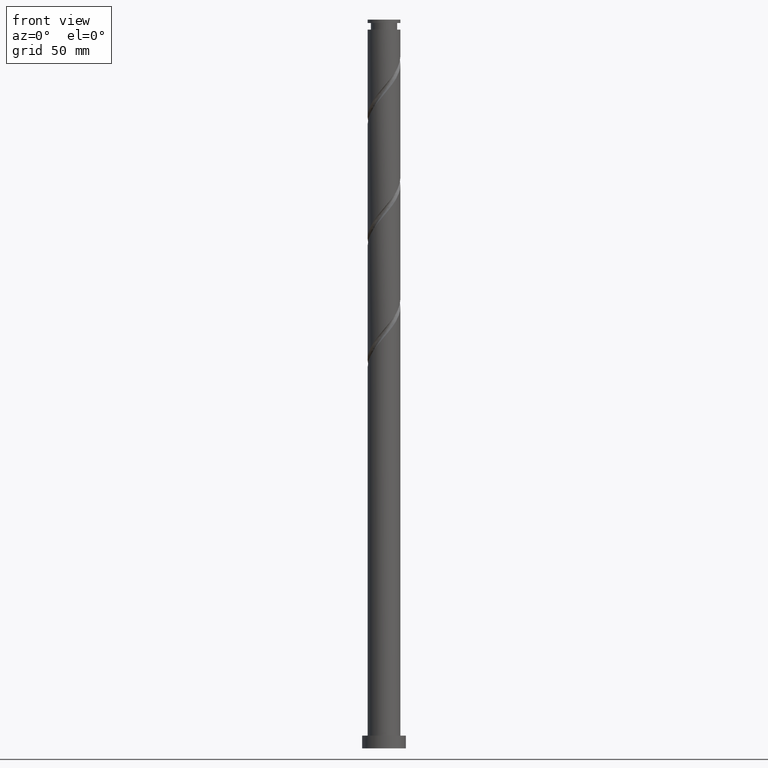
[diagram: clean part render]
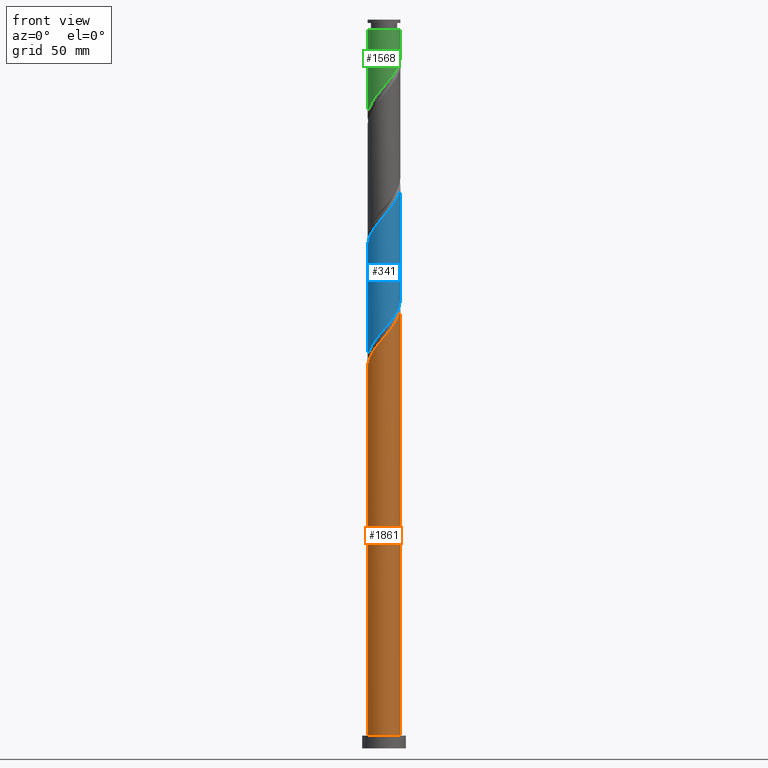
[diagram: same view with three faces highlighted in distinct colors, each labeled with its STEP entity id]
A machine part, front view with three faces highlighted in distinct colors.
Their STEP definitions:

[orange] entity #1861 — the highlighted cylindrical surface (edge-blend (fillet) strip) has radius 9 mm, axis along (-0, -0, -1).
#113 = CARTESIAN_POINT ( 'NONE',  ( 9.000000000000000000, 1.102182119232617714E-15, 400.0000000000000000 ) ) ;
#123 = DIRECTION ( 'NONE',  ( -0.000000000000000000, -0.000000000000000000, -1.000000000000000000 ) ) ;
#133 = CARTESIAN_POINT ( 'NONE',  ( 9.000000000000014211, 3.707207024324998828E-15, 242.3752466743283378 ) ) ;
#182 = CARTESIAN_POINT ( 'NONE',  ( 9.000000000000000000, 1.102182119232617714E-15, 7.000000000000000000 ) ) ;
#196 = DIRECTION ( 'NONE',  ( 0.000000000000000000, 0.000000000000000000, 1.000000000000000000 ) ) ;
#220 =( BOUNDED_CURVE ( )  B_SPLINE_CURVE ( 2, ( #258, #1502, #874, #1492, #1660, #1208, #1199, #1378, #729, #2009, #1840, #1679, #270, #1064, #1989, #1816, #595, #903, #1337, #575, #1184, #1217, #1671, #417, #442, #1054, #604, #1692, #288, #618, #1829, #1526, #133 ),
 .UNSPECIFIED., .F., .T. ) 
 B_SPLINE_CURVE_WITH_KNOTS ( ( 3, 2, 2, 2, 2, 2, 2, 2, 2, 2, 2, 2, 2, 2, 2, 2, 3 ),
 ( 0.05452860127731152390, 0.05833333333333334814, 0.06666666666666665186, 0.07499999999999995559, 0.08333333333333337034, 0.09166666666666667407, 0.09999999999999997780, 0.1083333333333332815, 0.1166666666666666963, 0.1250000000000000000, 0.1333333333333333037, 0.1416666666666667185, 0.1500000000000000222, 0.1583333333333333259, 0.1666666666666666297, 0.1750000000000000444, 0.1795286012773113504 ),
 .UNSPECIFIED. ) 
 CURVE ( )  GEOMETRIC_REPRESENTATION_ITEM ( )  RATIONAL_B_SPLINE_CURVE ( ( 0.9066196499552201526, 0.9068171577856329879, 0.9090909090909319312, 0.9041108139711800940, 0.9090909090909319312, 0.9041108139711800940, 0.9090909090909319312, 0.9041108139711800940, 0.9090909090909319312, 0.9041108139711800940, 0.9090909090909319312, 0.9041108139711800940, 0.9090909090909319312, 0.9041108139711800940, 0.9090909090909319312, 0.9041108139711800940, 0.9090909090909319312, 0.9041108139711800940, 0.9090909090909319312, 0.9041108139711800940, 0.9090909090909319312, 0.9041108139711800940, 0.9090909090909319312, 0.9041108139711800940, 0.9090909090909319312, 0.9041108139711800940, 0.9090909090909319312, 0.9041108139711800940, 0.9090909090909319312, 0.9041108139711800940, 0.9090909090909319312, 0.9063845652764790373, 0.9066196499552201526 ) ) 
 REPRESENTATION_ITEM ( '' )  );
#258 = CARTESIAN_POINT ( 'NONE',  ( -9.000000000000014211, -6.816477431823385273E-15, 209.0419133409949666 ) ) ;
#260 = VERTEX_POINT ( 'NONE', #1275 ) ;
#270 = CARTESIAN_POINT ( 'NONE',  ( -3.735334782763724437, -8.188239985532652199, 221.1673565845164262 ) ) ;
#288 = CARTESIAN_POINT ( 'NONE',  ( 8.533832754774719476, -2.858968085434738349, 238.9451343622941977 ) ) ;
#321 = VERTEX_POINT ( 'NONE', #1815 ) ;
#417 = CARTESIAN_POINT ( 'NONE',  ( 5.993866944837748179, -6.779996900406008997, 233.3895788067387400 ) ) ;
#418 = EDGE_LOOP ( 'NONE', ( #500, #1653, #1114, #1961 ) ) ;
#442 = CARTESIAN_POINT ( 'NONE',  ( 6.633197067675519421, -6.082819795241444005, 234.5006899178497974 ) ) ;
#495 = DIRECTION ( 'NONE',  ( -0.000000000000000000, -0.000000000000000000, -1.000000000000000000 ) ) ;
#500 = ORIENTED_EDGE ( 'NONE', *, *, #1830, .F. ) ;
#518 = EDGE_CURVE ( 'NONE', #260, #1599, #1458, .T. ) ;
#575 = CARTESIAN_POINT ( 'NONE',  ( 2.717996741835187358, -8.631760691383135509, 228.9451343622943114 ) ) ;
#585 = DIRECTION ( 'NONE',  ( -1.000000000000000000, 0.000000000000000000, 0.000000000000000000 ) ) ;
#595 = CARTESIAN_POINT ( 'NONE',  ( -0.08194087915362405217, -8.999626975176459709, 225.6118010289608833 ) ) ;
#604 = CARTESIAN_POINT ( 'NONE',  ( 7.752935145509708192, -4.570776370543699230, 236.7229121400720260 ) ) ;
#610 = EDGE_CURVE ( 'NONE', #1167, #260, #1258, .T. ) ;
#611 = DIRECTION ( 'NONE',  ( 1.000000000000000000, 0.000000000000000000, 0.000000000000000000 ) ) ;
#618 = CARTESIAN_POINT ( 'NONE',  ( 8.834322409043315005, -1.962026119858962803, 240.0562454734053972 ) ) ;
#660 = CARTESIAN_POINT ( 'NONE',  ( 0.000000000000000000, 0.000000000000000000, 7.000000000000000000 ) ) ;
#690 = VECTOR ( 'NONE', #495, 1000.000000000000000 ) ;
#729 = CARTESIAN_POINT ( 'NONE',  ( -6.742855367982801162, -5.961031914565277923, 216.7229121400720544 ) ) ;
#739 = DIRECTION ( 'NONE',  ( -0.000000000000000000, -0.000000000000000000, -1.000000000000000000 ) ) ;
#770 = CARTESIAN_POINT ( 'NONE',  ( 0.000000000000000000, 0.000000000000000000, 400.0000000000000000 ) ) ;
#783 = AXIS2_PLACEMENT_3D ( 'NONE', #660, #196, #611 ) ;
#874 = CARTESIAN_POINT ( 'NONE',  ( -8.958891231136661304, -0.8592251792533123211, 210.0562454734053972 ) ) ;
#903 = CARTESIAN_POINT ( 'NONE',  ( 0.8639580317486520444, -9.008239308616900587, 226.7229121400720544 ) ) ;
#1054 = CARTESIAN_POINT ( 'NONE',  ( 7.272527190513288886, -5.385642690076883454, 235.6118010289609686 ) ) ;
#1064 = CARTESIAN_POINT ( 'NONE',  ( -2.874716080912483207, -8.580839491336313074, 222.2784676956277110 ) ) ;
#1099 = AXIS2_PLACEMENT_3D ( 'NONE', #770, #739, #585 ) ;
#1113 = CARTESIAN_POINT ( 'NONE',  ( -9.000000000000014211, -6.816477431823385273E-15, 209.0419133409949950 ) ) ;
#1114 = ORIENTED_EDGE ( 'NONE', *, *, #610, .T. ) ;
#1167 = VERTEX_POINT ( 'NONE', #1113 ) ;
#1184 = CARTESIAN_POINT ( 'NONE',  ( 3.585621346871657789, -8.254896701767901135, 230.0562454734053688 ) ) ;
#1199 = CARTESIAN_POINT ( 'NONE',  ( -7.834876024663330440, -4.428850604632764032, 214.5006899178497974 ) ) ;
#1208 = CARTESIAN_POINT ( 'NONE',  ( -8.300366980569190645, -3.605371951659140262, 213.3895788067387400 ) ) ;
#1217 = CARTESIAN_POINT ( 'NONE',  ( 4.453245951908129108, -7.878032712152670314, 231.1673565845165115 ) ) ;
#1258 = LINE ( 'NONE', #1892, #690 ) ;
#1275 = CARTESIAN_POINT ( 'NONE',  ( -9.000000000000000000, 0.000000000000000000, 7.000000000000000000 ) ) ;
#1337 = CARTESIAN_POINT ( 'NONE',  ( 1.790977386791920756, -8.820000000000012719, 227.8340232511831118 ) ) ;
#1348 = LINE ( 'NONE', #113, #1629 ) ;
#1378 = CARTESIAN_POINT ( 'NONE',  ( -7.369385068757478230, -5.252329257606385582, 215.6118010289609970 ) ) ;
#1458 = CIRCLE ( 'NONE', #783, 9.000000000000000000 ) ;
#1492 = CARTESIAN_POINT ( 'NONE',  ( -8.868583025750229609, -1.800842590930307630, 211.1673565845164831 ) ) ;
#1502 = CARTESIAN_POINT ( 'NONE',  ( -9.000000000000014211, -0.4305959935807492922, 209.5504618665590613 ) ) ;
#1513 = CYLINDRICAL_SURFACE ( 'NONE', #1099, 9.000000000000000000 ) ;
#1526 = CARTESIAN_POINT ( 'NONE',  ( 9.000000000000015987, -0.5127636370179128322, 241.7696553649437590 ) ) ;
#1599 = VERTEX_POINT ( 'NONE', #182 ) ;
#1629 = VECTOR ( 'NONE', #123, 1000.000000000000000 ) ;
#1653 = ORIENTED_EDGE ( 'NONE', *, *, #1888, .F. ) ;
#1660 = CARTESIAN_POINT ( 'NONE',  ( -8.584475003159710127, -2.703107271294723279, 212.2784676956275689 ) ) ;
#1671 = CARTESIAN_POINT ( 'NONE',  ( 5.223556448372935535, -7.329014806279339211, 232.2784676956275973 ) ) ;
#1679 = CARTESIAN_POINT ( 'NONE',  ( -4.595953484614968332, -7.795640479728990435, 220.0562454734053404 ) ) ;
#1692 = CARTESIAN_POINT ( 'NONE',  ( 8.233343100506131051, -3.755910051010514561, 237.8340232511831971 ) ) ;
#1815 = CARTESIAN_POINT ( 'NONE',  ( 9.000000000000014211, 3.707207024324998828E-15, 242.3752466743283378 ) ) ;
#1816 = CARTESIAN_POINT ( 'NONE',  ( -1.027839790055897096, -8.991014641736025936, 224.5006899178498259 ) ) ;
#1829 = CARTESIAN_POINT ( 'NONE',  ( 8.941760922783203114, -1.022209176141318565, 241.1673565845164831 ) ) ;
#1830 = EDGE_CURVE ( 'NONE', #321, #1599, #1348, .T. ) ;
#1840 = CARTESIAN_POINT ( 'NONE',  ( -5.356139575911547546, -7.232687525626579017, 218.9451343622942261 ) ) ;
#1861 = ADVANCED_FACE ( 'NONE', ( #1978 ), #1513, .T. ) ;
#1888 = EDGE_CURVE ( 'NONE', #1167, #321, #220, .T. ) ;
#1892 = CARTESIAN_POINT ( 'NONE',  ( -9.000000000000000000, 0.000000000000000000, 400.0000000000000000 ) ) ;
#1961 = ORIENTED_EDGE ( 'NONE', *, *, #518, .T. ) ;
#1978 = FACE_OUTER_BOUND ( 'NONE', #418, .T. ) ;
#1989 = CARTESIAN_POINT ( 'NONE',  ( -1.951277935484189374, -8.785927066536167729, 223.3895788067386547 ) ) ;
#2009 = CARTESIAN_POINT ( 'NONE',  ( -6.116325667208126760, -6.669734571524174704, 217.8340232511831402 ) ) ;

[blue] entity #341 — the highlighted cylindrical surface (edge-blend (fillet) strip) has radius 9 mm, axis along (-0, -0, -1).
#26 =( BOUNDED_CURVE ( )  B_SPLINE_CURVE ( 2, ( #281, #1219, #1842, #1234, #1505, #422, #895, #1664, #273, #742, #905, #1515, #469, #116, #1704, #1528, #1372, #125, #2011, #291, #1362, #762, #597, #1495, #1340, #606, #1211, #1852, #444, #1066, #1865, #1077, #314 ),
 .UNSPECIFIED., .F., .T. ) 
 B_SPLINE_CURVE_WITH_KNOTS ( ( 3, 2, 2, 2, 2, 2, 2, 2, 2, 2, 2, 2, 2, 2, 2, 2, 3 ),
 ( 0.3045286012773114059, 0.3083333333333333481, 0.3166666666666666519, 0.3249999999999999556, 0.3333333333333333703, 0.3416666666666666741, 0.3499999999999999778, 0.3583333333333332815, 0.3666666666666666963, 0.3750000000000000000, 0.3833333333333333037, 0.3916666666666667185, 0.4000000000000000222, 0.4083333333333333259, 0.4166666666666666297, 0.4250000000000000444, 0.4295286012773115170 ),
 .UNSPECIFIED. ) 
 CURVE ( )  GEOMETRIC_REPRESENTATION_ITEM ( )  RATIONAL_B_SPLINE_CURVE ( ( 0.9066196499552201526, 0.9068171577856329879, 0.9090909090909319312, 0.9041108139711800940, 0.9090909090909319312, 0.9041108139711800940, 0.9090909090909319312, 0.9041108139711800940, 0.9090909090909319312, 0.9041108139711800940, 0.9090909090909319312, 0.9041108139711800940, 0.9090909090909319312, 0.9041108139711800940, 0.9090909090909319312, 0.9041108139711800940, 0.9090909090909319312, 0.9041108139711800940, 0.9090909090909319312, 0.9041108139711800940, 0.9090909090909319312, 0.9041108139711800940, 0.9090909090909319312, 0.9041108139711800940, 0.9090909090909319312, 0.9041108139711800940, 0.9090909090909319312, 0.9041108139711800940, 0.9090909090909319312, 0.9041108139711800940, 0.9090909090909319312, 0.9063845652764790373, 0.9066196499552202637 ) ) 
 REPRESENTATION_ITEM ( '' )  );
#49 = CARTESIAN_POINT ( 'NONE',  ( 7.369385068757456025, -5.252329257606383806, 240.0562454734054256 ) ) ;
#75 = CARTESIAN_POINT ( 'NONE',  ( -8.999999999999996447, -0.5127636370178869640, 213.8983911374225499 ) ) ;
#79 = VERTEX_POINT ( 'NONE', #1421 ) ;
#112 = CARTESIAN_POINT ( 'NONE',  ( 0.000000000000000000, 0.000000000000000000, 400.0000000000000000 ) ) ;
#116 = CARTESIAN_POINT ( 'NONE',  ( -2.874716080912483207, -8.580839491336313074, 288.9451343622942545 ) ) ;
#125 = CARTESIAN_POINT ( 'NONE',  ( 0.8639580317486520444, -9.008239308616900587, 293.3895788067388253 ) ) ;
#150 = CARTESIAN_POINT ( 'NONE',  ( -0.8639580317486584837, -9.008239308616882823, 228.9451343622942545 ) ) ;
#202 = CARTESIAN_POINT ( 'NONE',  ( 9.000000000000014211, 3.707207024324998828E-15, 309.0419133409949950 ) ) ;
#210 = ORIENTED_EDGE ( 'NONE', *, *, #1497, .F. ) ;
#247 = EDGE_CURVE ( 'NONE', #1025, #79, #997, .T. ) ;
#273 = CARTESIAN_POINT ( 'NONE',  ( -6.742855367982801162, -5.961031914565277923, 283.3895788067387116 ) ) ;
#281 = CARTESIAN_POINT ( 'NONE',  ( -9.000000000000014211, -6.816477431823385273E-15, 275.7085800076616238 ) ) ;
#291 = CARTESIAN_POINT ( 'NONE',  ( 2.717996741835187358, -8.631760691383135509, 295.6118010289608264 ) ) ;
#314 = CARTESIAN_POINT ( 'NONE',  ( 9.000000000000014211, 3.707207024324998828E-15, 309.0419133409949950 ) ) ;
#341 = ADVANCED_FACE ( 'NONE', ( #1155 ), #717, .T. ) ;
#344 = CARTESIAN_POINT ( 'NONE',  ( 8.584475003159690587, -2.703107271294727720, 243.3895788067387400 ) ) ;
#388 = AXIS2_PLACEMENT_3D ( 'NONE', #112, #738, #1347 ) ;
#422 = CARTESIAN_POINT ( 'NONE',  ( -8.300366980569190645, -3.605371951659140262, 280.0562454734054540 ) ) ;
#426 = CARTESIAN_POINT ( 'NONE',  ( -4.453245951908125555, -7.878032712152652550, 224.5006899178498259 ) ) ;
#444 = CARTESIAN_POINT ( 'NONE',  ( 8.533832754774719476, -2.858968085434738349, 305.6118010289609401 ) ) ;
#465 = ORIENTED_EDGE ( 'NONE', *, *, #735, .F. ) ;
#469 = CARTESIAN_POINT ( 'NONE',  ( -3.735334782763724437, -8.188239985532652199, 287.8340232511831687 ) ) ;
#499 = VECTOR ( 'NONE', #824, 1000.000000000000000 ) ;
#597 = CARTESIAN_POINT ( 'NONE',  ( 5.223556448372935535, -7.329014806279339211, 298.9451343622941977 ) ) ;
#606 = CARTESIAN_POINT ( 'NONE',  ( 7.272527190513288886, -5.385642690076883454, 302.2784676956277394 ) ) ;
#607 = CARTESIAN_POINT ( 'NONE',  ( 1.951277935484178272, -8.785927066536149965, 232.2784676956275973 ) ) ;
#621 = CARTESIAN_POINT ( 'NONE',  ( -2.717996741835189134, -8.631760691383114192, 226.7229121400721112 ) ) ;
#634 = CARTESIAN_POINT ( 'NONE',  ( 9.000000000000000000, 1.102182119232617714E-15, 400.0000000000000000 ) ) ;
#640 = CARTESIAN_POINT ( 'NONE',  ( -8.533832754774707041, -2.858968085434725470, 216.7229121400720544 ) ) ;
#663 = CARTESIAN_POINT ( 'NONE',  ( -8.834322409043297242, -1.962026119858949036, 215.6118010289610254 ) ) ;
#676 = CARTESIAN_POINT ( 'NONE',  ( 6.742855367982783399, -5.961031914565274370, 238.9451343622942261 ) ) ;
#717 = CYLINDRICAL_SURFACE ( 'NONE', #388, 9.000000000000000000 ) ;
#719 = VERTEX_POINT ( 'NONE', #202 ) ;
#735 = EDGE_CURVE ( 'NONE', #1591, #79, #1832, .T. ) ;
#738 = DIRECTION ( 'NONE',  ( -0.000000000000000000, -0.000000000000000000, -1.000000000000000000 ) ) ;
#742 = CARTESIAN_POINT ( 'NONE',  ( -6.116325667208126760, -6.669734571524174704, 284.5006899178497974 ) ) ;
#762 = CARTESIAN_POINT ( 'NONE',  ( 4.453245951908129108, -7.878032712152670314, 297.8340232511831118 ) ) ;
#824 = DIRECTION ( 'NONE',  ( -0.000000000000000000, -0.000000000000000000, -1.000000000000000000 ) ) ;
#888 = CARTESIAN_POINT ( 'NONE',  ( -5.223556448372932870, -7.329014806279322336, 223.3895788067387400 ) ) ;
#895 = CARTESIAN_POINT ( 'NONE',  ( -7.834876024663330440, -4.428850604632764032, 281.1673565845165399 ) ) ;
#900 = CARTESIAN_POINT ( 'NONE',  ( -7.752935145509697534, -4.570776370543681466, 218.9451343622942545 ) ) ;
#905 = CARTESIAN_POINT ( 'NONE',  ( -5.356139575911547546, -7.232687525626579017, 285.6118010289609970 ) ) ;
#906 = CARTESIAN_POINT ( 'NONE',  ( 2.874716080912471217, -8.580839491336300640, 233.3895788067387116 ) ) ;
#961 = CARTESIAN_POINT ( 'NONE',  ( 8.300366980569171105, -3.605371951659140706, 242.2784676956275689 ) ) ;
#965 = CARTESIAN_POINT ( 'NONE',  ( -9.000000000000000000, 0.000000000000000000, 400.0000000000000000 ) ) ;
#997 = LINE ( 'NONE', #965, #1724 ) ;
#1025 = VERTEX_POINT ( 'NONE', #1125 ) ;
#1033 = CARTESIAN_POINT ( 'NONE',  ( -7.272527190513280004, -5.385642690076868355, 220.0562454734053688 ) ) ;
#1066 = CARTESIAN_POINT ( 'NONE',  ( 8.834322409043315005, -1.962026119858962803, 306.7229121400721397 ) ) ;
#1077 = CARTESIAN_POINT ( 'NONE',  ( 9.000000000000017764, -0.5127636370178940695, 308.4363220316104162 ) ) ;
#1084 = CARTESIAN_POINT ( 'NONE',  ( 9.000000000000001776, -0.4305959935807440186, 246.1175846358073045 ) ) ;
#1118 = CARTESIAN_POINT ( 'NONE',  ( -6.633197067675508762, -6.082819795241429794, 221.1673565845164831 ) ) ;
#1125 = CARTESIAN_POINT ( 'NONE',  ( -9.000000000000014211, -6.816477431823385273E-15, 275.7085800076616238 ) ) ;
#1153 = CARTESIAN_POINT ( 'NONE',  ( -9.000000000000000000, 1.133089888886441085E-14, 213.2927998280379995 ) ) ;
#1155 = FACE_OUTER_BOUND ( 'NONE', #1176, .T. ) ;
#1176 = EDGE_LOOP ( 'NONE', ( #210, #1349, #1410, #465 ) ) ;
#1211 = CARTESIAN_POINT ( 'NONE',  ( 7.752935145509708192, -4.570776370543699230, 303.3895788067387116 ) ) ;
#1219 = CARTESIAN_POINT ( 'NONE',  ( -9.000000000000015987, -0.4305959935807358585, 276.2171285332256616 ) ) ;
#1234 = CARTESIAN_POINT ( 'NONE',  ( -8.868583025750229609, -1.800842590930307630, 277.8340232511832255 ) ) ;
#1283 = CARTESIAN_POINT ( 'NONE',  ( 6.116325667208112549, -6.669734571524164934, 237.8340232511831687 ) ) ;
#1340 = CARTESIAN_POINT ( 'NONE',  ( 6.633197067675519421, -6.082819795241444005, 301.1673565845164831 ) ) ;
#1347 = DIRECTION ( 'NONE',  ( -1.000000000000000000, 0.000000000000000000, 0.000000000000000000 ) ) ;
#1349 = ORIENTED_EDGE ( 'NONE', *, *, #1428, .F. ) ;
#1362 = CARTESIAN_POINT ( 'NONE',  ( 3.585621346871657789, -8.254896701767901135, 296.7229121400719691 ) ) ;
#1372 = CARTESIAN_POINT ( 'NONE',  ( -0.08194087915362405217, -8.999626975176459709, 292.2784676956275689 ) ) ;
#1398 = CARTESIAN_POINT ( 'NONE',  ( 8.868583025750210069, -1.800842590930308296, 244.5006899178498543 ) ) ;
#1410 = ORIENTED_EDGE ( 'NONE', *, *, #247, .T. ) ;
#1421 = CARTESIAN_POINT ( 'NONE',  ( -9.000000000000000000, 1.133089888886440769E-14, 213.2927998280379995 ) ) ;
#1428 = EDGE_CURVE ( 'NONE', #1025, #719, #26, .T. ) ;
#1495 = CARTESIAN_POINT ( 'NONE',  ( 5.993866944837748179, -6.779996900406008997, 300.0562454734053972 ) ) ;
#1497 = EDGE_CURVE ( 'NONE', #719, #1591, #1598, .T. ) ;
#1505 = CARTESIAN_POINT ( 'NONE',  ( -8.584475003159710127, -2.703107271294723279, 278.9451343622943682 ) ) ;
#1508 = CARTESIAN_POINT ( 'NONE',  ( -5.993866944837742849, -6.779996900405991234, 222.2784676956276257 ) ) ;
#1515 = CARTESIAN_POINT ( 'NONE',  ( -4.595953484614968332, -7.795640479728990435, 286.7229121400721965 ) ) ;
#1523 = CARTESIAN_POINT ( 'NONE',  ( -8.233343100506116841, -3.755910051010503015, 217.8340232511831971 ) ) ;
#1528 = CARTESIAN_POINT ( 'NONE',  ( -1.027839790055897096, -8.991014641736025936, 291.1673565845165399 ) ) ;
#1583 = CARTESIAN_POINT ( 'NONE',  ( 9.000000000000000000, 1.019481931689383533E-14, 246.6261331613713992 ) ) ;
#1591 = VERTEX_POINT ( 'NONE', #1714 ) ;
#1592 = CARTESIAN_POINT ( 'NONE',  ( 7.834876024663315341, -4.428850604632758703, 241.1673565845165115 ) ) ;
#1598 = LINE ( 'NONE', #634, #499 ) ;
#1622 = DIRECTION ( 'NONE',  ( -0.000000000000000000, -0.000000000000000000, -1.000000000000000000 ) ) ;
#1664 = CARTESIAN_POINT ( 'NONE',  ( -7.369385068757478230, -5.252329257606385582, 282.2784676956276257 ) ) ;
#1704 = CARTESIAN_POINT ( 'NONE',  ( -1.951277935484189374, -8.785927066536167729, 290.0562454734053404 ) ) ;
#1705 = CARTESIAN_POINT ( 'NONE',  ( 1.027839790055891100, -8.991014641736004620, 231.1673565845165115 ) ) ;
#1714 = CARTESIAN_POINT ( 'NONE',  ( 9.000000000000000000, 1.019481931689383533E-14, 246.6261331613713992 ) ) ;
#1724 = VECTOR ( 'NONE', #1622, 1000.000000000000000 ) ;
#1756 = CARTESIAN_POINT ( 'NONE',  ( 4.595953484614951456, -7.795640479728977112, 235.6118010289609401 ) ) ;
#1832 =( BOUNDED_CURVE ( )  B_SPLINE_CURVE ( 2, ( #1583, #1084, #1899, #1398, #344, #961, #1592, #49, #676, #1283, #1920, #1756, #1843, #906, #607, #1705, #1853, #150, #2012, #621, #1866, #426, #888, #1508, #1118, #1033, #900, #1523, #640, #663, #1882, #75, #1153 ),
 .UNSPECIFIED., .F., .T. ) 
 B_SPLINE_CURVE_WITH_KNOTS ( ( 3, 2, 2, 2, 2, 2, 2, 2, 2, 2, 2, 2, 2, 2, 2, 2, 3 ),
 ( 0.8045286012773114059, 0.8083333333333333481, 0.8166666666666666519, 0.8249999999999999556, 0.8333333333333333703, 0.8416666666666666741, 0.8499999999999999778, 0.8583333333333332815, 0.8666666666666666963, 0.8750000000000000000, 0.8833333333333333037, 0.8916666666666667185, 0.9000000000000000222, 0.9083333333333333259, 0.9166666666666666297, 0.9250000000000000444, 0.9295286012773115170 ),
 .UNSPECIFIED. ) 
 CURVE ( )  GEOMETRIC_REPRESENTATION_ITEM ( )  RATIONAL_B_SPLINE_CURVE ( ( 0.9066196499552123811, 0.9068171577856251053, 0.9090909090909240486, 0.9041108139711723224, 0.9090909090909240486, 0.9041108139711723224, 0.9090909090909240486, 0.9041108139711723224, 0.9090909090909240486, 0.9041108139711723224, 0.9090909090909240486, 0.9041108139711723224, 0.9090909090909240486, 0.9041108139711723224, 0.9090909090909240486, 0.9041108139711723224, 0.9090909090909240486, 0.9041108139711723224, 0.9090909090909240486, 0.9041108139711723224, 0.9090909090909240486, 0.9041108139711723224, 0.9090909090909240486, 0.9041108139711723224, 0.9090909090909240486, 0.9041108139711723224, 0.9090909090909240486, 0.9041108139711723224, 0.9090909090909240486, 0.9041108139711723224, 0.9090909090909240486, 0.9063845652764712657, 0.9066196499552124921 ) ) 
 REPRESENTATION_ITEM ( '' )  );
#1842 = CARTESIAN_POINT ( 'NONE',  ( -8.958891231136661304, -0.8592251792533123211, 276.7229121400719691 ) ) ;
#1843 = CARTESIAN_POINT ( 'NONE',  ( 3.735334782763712447, -8.188239985532636211, 234.5006899178498259 ) ) ;
#1852 = CARTESIAN_POINT ( 'NONE',  ( 8.233343100506131051, -3.755910051010514561, 304.5006899178500248 ) ) ;
#1853 = CARTESIAN_POINT ( 'NONE',  ( 0.08194087915361626673, -8.999626975176445498, 230.0562454734054256 ) ) ;
#1865 = CARTESIAN_POINT ( 'NONE',  ( 8.941760922783203114, -1.022209176141318565, 307.8340232511831687 ) ) ;
#1866 = CARTESIAN_POINT ( 'NONE',  ( -3.585621346871658233, -8.254896701767883371, 225.6118010289609401 ) ) ;
#1882 = CARTESIAN_POINT ( 'NONE',  ( -8.941760922783187127, -1.022209176141313014, 214.5006899178498259 ) ) ;
#1899 = CARTESIAN_POINT ( 'NONE',  ( 8.958891231136643540, -0.8592251792533189825, 245.6118010289609970 ) ) ;
#1920 = CARTESIAN_POINT ( 'NONE',  ( 5.356139575911532447, -7.232687525626571023, 236.7229121400720828 ) ) ;
#2011 = CARTESIAN_POINT ( 'NONE',  ( 1.790977386791920756, -8.820000000000012719, 294.5006899178497974 ) ) ;
#2012 = CARTESIAN_POINT ( 'NONE',  ( -1.790977386791921644, -8.819999999999996732, 227.8340232511831402 ) ) ;

[green] entity #1568 — the highlighted cylindrical surface (edge-blend (fillet) strip) has radius 9 mm, axis along (-0, -0, -1).
#74 = CARTESIAN_POINT ( 'NONE',  ( -7.272527190513280004, -5.385642690076868355, 353.3895788067387116 ) ) ;
#83 = CARTESIAN_POINT ( 'NONE',  ( 7.369385068757456025, -5.252329257606383806, 373.3895788067387684 ) ) ;
#100 = CARTESIAN_POINT ( 'NONE',  ( -8.941760922783187127, -1.022209176141313014, 347.8340232511831687 ) ) ;
#167 = VECTOR ( 'NONE', #1222, 1000.000000000000000 ) ;
#184 = CARTESIAN_POINT ( 'NONE',  ( 9.000000000000000000, 4.364937302834309369E-15, 379.9594664947046567 ) ) ;
#230 = CARTESIAN_POINT ( 'NONE',  ( 0.000000000000000000, 0.000000000000000000, 394.5006899178497974 ) ) ;
#236 = CARTESIAN_POINT ( 'NONE',  ( -5.223556448372932870, -7.329014806279322336, 356.7229121400720828 ) ) ;
#343 = EDGE_LOOP ( 'NONE', ( #1157, #821, #1873, #1407 ) ) ;
#369 = CARTESIAN_POINT ( 'NONE',  ( -6.633197067675508762, -6.082819795241429794, 354.5006899178499111 ) ) ;
#377 = CARTESIAN_POINT ( 'NONE',  ( 3.735334782763712447, -8.188239985532636211, 367.8340232511831118 ) ) ;
#384 =( BOUNDED_CURVE ( )  B_SPLINE_CURVE ( 2, ( #1487, #706, #1161, #1776, #560, #853, #1295, #83, #397, #837, #1769, #689, #377, #537, #697, #995, #843, #870, #1321, #1311, #1802, #1460, #236, #551, #369, #74, #1303, #1926, #1647, #1957, #100, #1289, #528 ),
 .UNSPECIFIED., .F., .T. ) 
 B_SPLINE_CURVE_WITH_KNOTS ( ( 3, 2, 2, 2, 2, 2, 2, 2, 2, 2, 2, 2, 2, 2, 2, 2, 3 ),
 ( 0.3045286012773115170, 0.3083333333333333481, 0.3166666666666666519, 0.3250000000000000111, 0.3333333333333333148, 0.3416666666666666741, 0.3499999999999999778, 0.3583333333333333370, 0.3666666666666666408, 0.3750000000000000000, 0.3833333333333333592, 0.3916666666666666630, 0.4000000000000000222, 0.4083333333333333259, 0.4166666666666666852, 0.4249999999999999889, 0.4295286012773115170 ),
 .UNSPECIFIED. ) 
 CURVE ( )  GEOMETRIC_REPRESENTATION_ITEM ( )  RATIONAL_B_SPLINE_CURVE ( ( 0.9066196499552123811, 0.9068171577856252163, 0.9090909090909240486, 0.9041108139711723224, 0.9090909090909240486, 0.9041108139711723224, 0.9090909090909240486, 0.9041108139711723224, 0.9090909090909240486, 0.9041108139711723224, 0.9090909090909240486, 0.9041108139711723224, 0.9090909090909240486, 0.9041108139711723224, 0.9090909090909240486, 0.9041108139711723224, 0.9090909090909240486, 0.9041108139711723224, 0.9090909090909240486, 0.9041108139711723224, 0.9090909090909240486, 0.9041108139711723224, 0.9090909090909240486, 0.9041108139711723224, 0.9090909090909240486, 0.9041108139711723224, 0.9090909090909240486, 0.9041108139711723224, 0.9090909090909240486, 0.9041108139711723224, 0.9090909090909240486, 0.9063845652764711547, 0.9066196499552123811 ) ) 
 REPRESENTATION_ITEM ( '' )  );
#390 = AXIS2_PLACEMENT_3D ( 'NONE', #481, #1728, #1087 ) ;
#391 = DIRECTION ( 'NONE',  ( -0.000000000000000000, -0.000000000000000000, -1.000000000000000000 ) ) ;
#397 = CARTESIAN_POINT ( 'NONE',  ( 6.742855367982783399, -5.961031914565274370, 372.2784676956276257 ) ) ;
#419 = EDGE_CURVE ( 'NONE', #671, #1894, #1388, .T. ) ;
#481 = CARTESIAN_POINT ( 'NONE',  ( 0.000000000000000000, 0.000000000000000000, 400.0000000000000000 ) ) ;
#528 = CARTESIAN_POINT ( 'NONE',  ( -8.999999999999996447, 4.544318287882294977E-15, 346.6261331613712287 ) ) ;
#530 = EDGE_CURVE ( 'NONE', #671, #639, #1565, .T. ) ;
#537 = CARTESIAN_POINT ( 'NONE',  ( 2.874716080912471217, -8.580839491336300640, 366.7229121400721397 ) ) ;
#551 = CARTESIAN_POINT ( 'NONE',  ( -5.993866944837742849, -6.779996900405991234, 355.6118010289609970 ) ) ;
#560 = CARTESIAN_POINT ( 'NONE',  ( 8.584475003159690587, -2.703107271294727720, 376.7229121400721397 ) ) ;
#572 = EDGE_CURVE ( 'NONE', #1894, #1745, #796, .T. ) ;
#637 = CARTESIAN_POINT ( 'NONE',  ( 9.000000000000000000, 1.102182119232617714E-15, 400.0000000000000000 ) ) ;
#639 = VERTEX_POINT ( 'NONE', #184 ) ;
#671 = VERTEX_POINT ( 'NONE', #955 ) ;
#689 = CARTESIAN_POINT ( 'NONE',  ( 4.595953484614951456, -7.795640479728977112, 368.9451343622943114 ) ) ;
#697 = CARTESIAN_POINT ( 'NONE',  ( 1.951277935484178272, -8.785927066536149965, 365.6118010289608833 ) ) ;
#706 = CARTESIAN_POINT ( 'NONE',  ( 9.000000000000000000, -0.4305959935807595618, 379.4509179691407326 ) ) ;
#759 = CARTESIAN_POINT ( 'NONE',  ( -8.999999999999964473, 0.000000000000000000, 394.5006899178497974 ) ) ;
#796 = LINE ( 'NONE', #1069, #1928 ) ;
#821 = ORIENTED_EDGE ( 'NONE', *, *, #419, .T. ) ;
#837 = CARTESIAN_POINT ( 'NONE',  ( 6.116325667208112549, -6.669734571524164934, 371.1673565845165399 ) ) ;
#843 = CARTESIAN_POINT ( 'NONE',  ( 0.08194087915361626673, -8.999626975176445498, 363.3895788067387116 ) ) ;
#853 = CARTESIAN_POINT ( 'NONE',  ( 8.300366980569171105, -3.605371951659140706, 375.6118010289608833 ) ) ;
#870 = CARTESIAN_POINT ( 'NONE',  ( -0.8639580317486584837, -9.008239308616882823, 362.2784676956276826 ) ) ;
#955 = CARTESIAN_POINT ( 'NONE',  ( 8.999999999999964473, 1.102182119232615545E-15, 394.5006899178497974 ) ) ;
#995 = CARTESIAN_POINT ( 'NONE',  ( 1.027839790055891100, -8.991014641736004620, 364.5006899178499680 ) ) ;
#1069 = CARTESIAN_POINT ( 'NONE',  ( -9.000000000000000000, 0.000000000000000000, 400.0000000000000000 ) ) ;
#1087 = DIRECTION ( 'NONE',  ( -1.000000000000000000, 0.000000000000000000, 0.000000000000000000 ) ) ;
#1157 = ORIENTED_EDGE ( 'NONE', *, *, #530, .F. ) ;
#1161 = CARTESIAN_POINT ( 'NONE',  ( 8.958891231136643540, -0.8592251792533189825, 378.9451343622942545 ) ) ;
#1222 = DIRECTION ( 'NONE',  ( -0.000000000000000000, -0.000000000000000000, -1.000000000000000000 ) ) ;
#1266 = EDGE_CURVE ( 'NONE', #639, #1745, #384, .T. ) ;
#1289 = CARTESIAN_POINT ( 'NONE',  ( -9.000000000000000000, -0.5127636370178842995, 347.2317244707559212 ) ) ;
#1291 = CARTESIAN_POINT ( 'NONE',  ( -8.999999999999998224, 4.544318287882294977E-15, 346.6261331613712287 ) ) ;
#1295 = CARTESIAN_POINT ( 'NONE',  ( 7.834876024663315341, -4.428850604632758703, 374.5006899178497974 ) ) ;
#1303 = CARTESIAN_POINT ( 'NONE',  ( -7.752935145509697534, -4.570776370543681466, 352.2784676956275121 ) ) ;
#1311 = CARTESIAN_POINT ( 'NONE',  ( -2.717996741835189134, -8.631760691383114192, 360.0562454734054540 ) ) ;
#1321 = CARTESIAN_POINT ( 'NONE',  ( -1.790977386791921644, -8.819999999999996732, 361.1673565845164831 ) ) ;
#1388 = CIRCLE ( 'NONE', #1789, 8.999999999999964473 ) ;
#1405 = DIRECTION ( 'NONE',  ( -0.000000000000000000, -0.000000000000000000, -1.000000000000000000 ) ) ;
#1407 = ORIENTED_EDGE ( 'NONE', *, *, #1266, .F. ) ;
#1460 = CARTESIAN_POINT ( 'NONE',  ( -4.453245951908125555, -7.878032712152652550, 357.8340232511831687 ) ) ;
#1487 = CARTESIAN_POINT ( 'NONE',  ( 9.000000000000000000, 4.364937302834309369E-15, 379.9594664947045999 ) ) ;
#1549 = CYLINDRICAL_SURFACE ( 'NONE', #390, 9.000000000000000000 ) ;
#1565 = LINE ( 'NONE', #637, #167 ) ;
#1568 = ADVANCED_FACE ( 'NONE', ( #1763 ), #1549, .T. ) ;
#1633 = DIRECTION ( 'NONE',  ( -1.000000000000000000, 0.000000000000000000, 0.000000000000000000 ) ) ;
#1647 = CARTESIAN_POINT ( 'NONE',  ( -8.533832754774707041, -2.858968085434725470, 350.0562454734053404 ) ) ;
#1728 = DIRECTION ( 'NONE',  ( -0.000000000000000000, -0.000000000000000000, -1.000000000000000000 ) ) ;
#1745 = VERTEX_POINT ( 'NONE', #1291 ) ;
#1763 = FACE_OUTER_BOUND ( 'NONE', #343, .T. ) ;
#1769 = CARTESIAN_POINT ( 'NONE',  ( 5.356139575911532447, -7.232687525626571023, 370.0562454734053404 ) ) ;
#1776 = CARTESIAN_POINT ( 'NONE',  ( 8.868583025750210069, -1.800842590930308296, 377.8340232511832255 ) ) ;
#1789 = AXIS2_PLACEMENT_3D ( 'NONE', #230, #391, #1633 ) ;
#1802 = CARTESIAN_POINT ( 'NONE',  ( -3.585621346871658233, -8.254896701767883371, 358.9451343622943114 ) ) ;
#1873 = ORIENTED_EDGE ( 'NONE', *, *, #572, .T. ) ;
#1894 = VERTEX_POINT ( 'NONE', #759 ) ;
#1926 = CARTESIAN_POINT ( 'NONE',  ( -8.233343100506116841, -3.755910051010503015, 351.1673565845164831 ) ) ;
#1928 = VECTOR ( 'NONE', #1405, 1000.000000000000000 ) ;
#1957 = CARTESIAN_POINT ( 'NONE',  ( -8.834322409043297242, -1.962026119858949036, 348.9451343622943114 ) ) ;